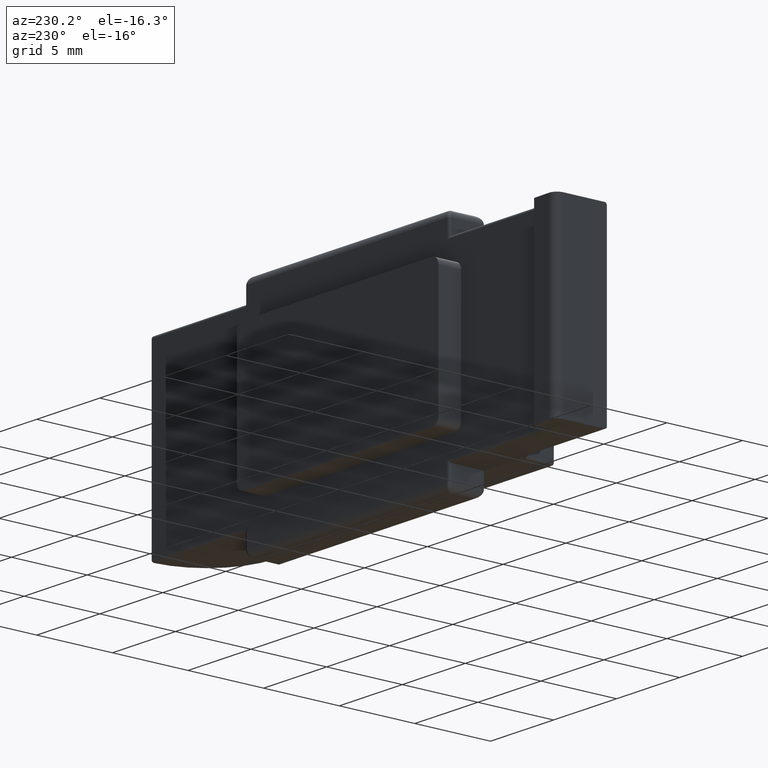
[diagram: clean part render]
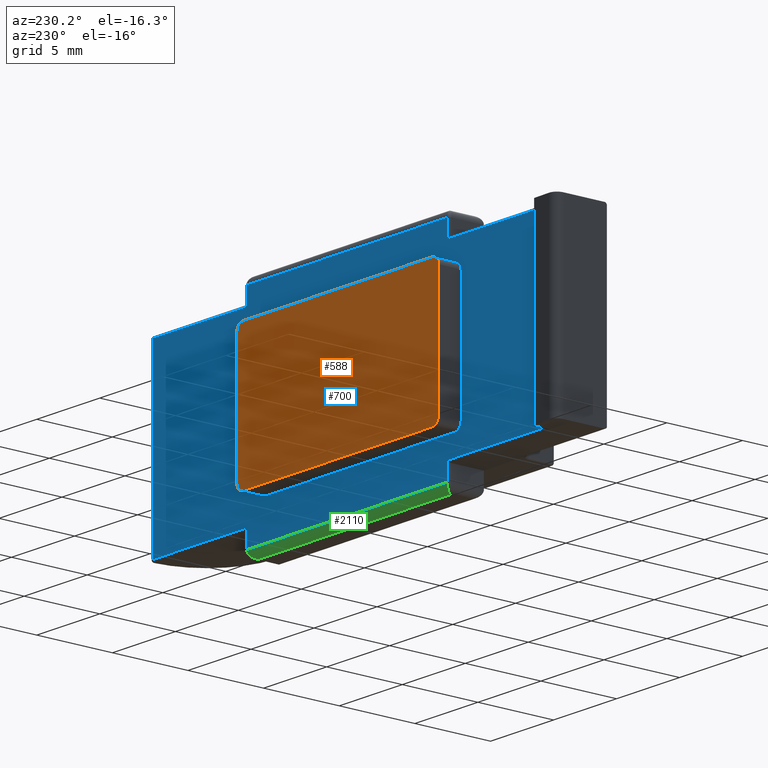
[diagram: same view with three faces highlighted in distinct colors, each labeled with its STEP entity id]
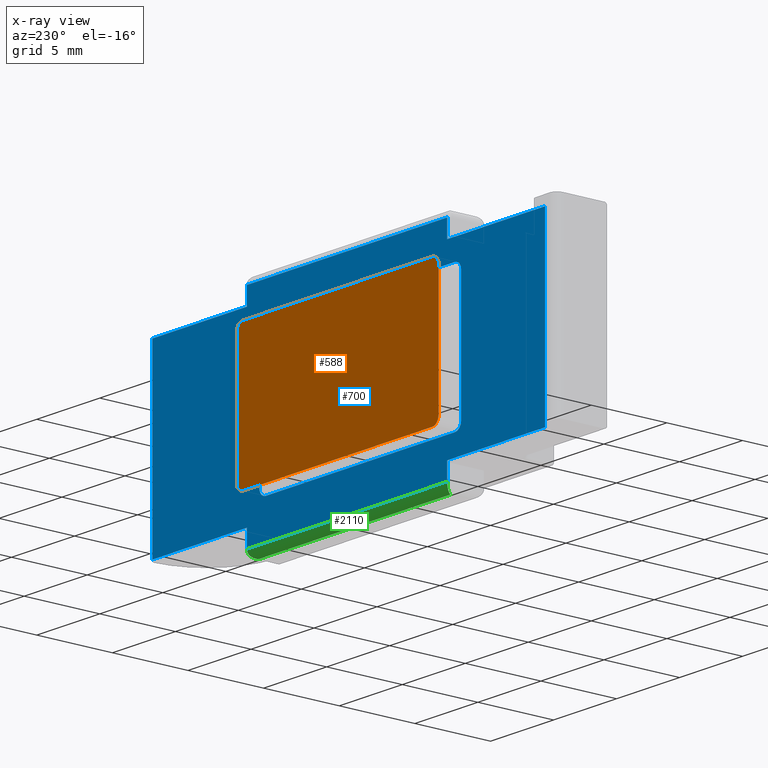
[diagram: x-ray of the same camera — body ghosted, the three highlighted faces saturated]
A machine part, auxiliary view with three faces highlighted in distinct colors.
The next image is the same camera in x-ray (body ghosted, the three faces saturated) — at least one of them is partly hidden behind the body in this view.
Their STEP definitions:

[orange] entity #588 — the highlighted planar face has unit normal (0, 1, 0).
#61 = ORIENTED_EDGE ( 'NONE', *, *, #1057, .T. ) ;
#99 = CARTESIAN_POINT ( 'NONE',  ( 18.04741302385688684, 0.8999999999999980238, 0.000000000000000000 ) ) ;
#156 = LINE ( 'NONE', #99, #1447 ) ;
#164 = CARTESIAN_POINT ( 'NONE',  ( 17.54741302385686197, 0.8999999999999980238, 10.00000000000000533 ) ) ;
#168 = ORIENTED_EDGE ( 'NONE', *, *, #463, .T. ) ;
#169 = EDGE_CURVE ( 'NONE', #1903, #2158, #296, .T. ) ;
#189 = DIRECTION ( 'NONE',  ( 0.000000000000000000, -6.162975822039132834E-33, -1.000000000000000000 ) ) ;
#256 = DIRECTION ( 'NONE',  ( 4.068560582467007589E-18, 1.000000000000000000, 0.000000000000000000 ) ) ;
#275 = VERTEX_POINT ( 'NONE', #1791 ) ;
#296 = CIRCLE ( 'NONE', #374, 0.5000000000000017764 ) ;
#374 = AXIS2_PLACEMENT_3D ( 'NONE', #573, #256, #1272 ) ;
#380 = CIRCLE ( 'NONE', #2115, 0.5000000000000004441 ) ;
#405 = VERTEX_POINT ( 'NONE', #688 ) ;
#437 = ORIENTED_EDGE ( 'NONE', *, *, #1945, .T. ) ;
#450 = VECTOR ( 'NONE', #1985, 1000.000000000000000 ) ;
#460 = ORIENTED_EDGE ( 'NONE', *, *, #835, .T. ) ;
#463 = EDGE_CURVE ( 'NONE', #1114, #2041, #380, .T. ) ;
#558 = AXIS2_PLACEMENT_3D ( 'NONE', #641, #1106, #1307 ) ;
#573 = CARTESIAN_POINT ( 'NONE',  ( 2.547413023856831771, 0.8999999999999980238, 2.000000000000001776 ) ) ;
#588 = ADVANCED_FACE ( 'NONE', ( #1833 ), #2139, .T. ) ;
#626 = CARTESIAN_POINT ( 'NONE',  ( 2.547413023856831771, 0.8999999999999980238, 1.500000000000001332 ) ) ;
#629 = LINE ( 'NONE', #1966, #734 ) ;
#641 = CARTESIAN_POINT ( 'NONE',  ( 2.547413023856807346, 0.8999999999999980238, 10.00000000000000888 ) ) ;
#655 = LINE ( 'NONE', #1035, #1450 ) ;
#688 = CARTESIAN_POINT ( 'NONE',  ( 18.04741302385686197, 0.8999999999999980238, 10.00000000000000533 ) ) ;
#696 = CARTESIAN_POINT ( 'NONE',  ( 2.047413023856806902, 0.8999999999999980238, 10.00000000000000888 ) ) ;
#728 = CARTESIAN_POINT ( 'NONE',  ( 17.54741302385688684, 0.8999999999999980238, 2.000000000000001776 ) ) ;
#734 = VECTOR ( 'NONE', #1446, 1000.000000000000000 ) ;
#835 = EDGE_CURVE ( 'NONE', #275, #1571, #629, .T. ) ;
#951 = ORIENTED_EDGE ( 'NONE', *, *, #1848, .T. ) ;
#1004 = CARTESIAN_POINT ( 'NONE',  ( 2.047413023856830883, 0.8999999999999980238, 2.000000000000001776 ) ) ;
#1035 = CARTESIAN_POINT ( 'NONE',  ( 3.469446951953614189E-15, 0.8999999999999980238, 1.500000000000008216 ) ) ;
#1057 = EDGE_CURVE ( 'NONE', #2041, #1903, #655, .T. ) ;
#1070 = DIRECTION ( 'NONE',  ( -1.000000000000000000, 0.000000000000000000, 0.000000000000000000 ) ) ;
#1073 = ORIENTED_EDGE ( 'NONE', *, *, #1395, .T. ) ;
#1081 = AXIS2_PLACEMENT_3D ( 'NONE', #1466, #1938, #1594 ) ;
#1088 = ORIENTED_EDGE ( 'NONE', *, *, #169, .T. ) ;
#1106 = DIRECTION ( 'NONE',  ( 4.068560582467007589E-18, 1.000000000000000000, 0.000000000000000000 ) ) ;
#1114 = VERTEX_POINT ( 'NONE', #1407 ) ;
#1119 = CARTESIAN_POINT ( 'NONE',  ( 17.54741302385688684, 0.8999999999999980238, 1.500000000000001332 ) ) ;
#1272 = DIRECTION ( 'NONE',  ( -1.000000000000000000, 0.000000000000000000, 0.000000000000000000 ) ) ;
#1303 = CARTESIAN_POINT ( 'NONE',  ( 2.047413023856830883, 0.8999999999999980238, 0.000000000000000000 ) ) ;
#1307 = DIRECTION ( 'NONE',  ( -1.000000000000000000, 0.000000000000000000, 0.000000000000000000 ) ) ;
#1380 = CARTESIAN_POINT ( 'NONE',  ( 17.54741302385686197, 0.8999999999999980238, 10.50000000000000533 ) ) ;
#1395 = EDGE_CURVE ( 'NONE', #2158, #1608, #1545, .T. ) ;
#1407 = CARTESIAN_POINT ( 'NONE',  ( 18.04741302385688684, 0.8999999999999980238, 2.000000000000001776 ) ) ;
#1433 = EDGE_LOOP ( 'NONE', ( #460, #1537, #437, #168, #61, #1088, #1073, #951 ) ) ;
#1438 = EDGE_CURVE ( 'NONE', #1571, #405, #2203, .T. ) ;
#1446 = DIRECTION ( 'NONE',  ( 1.000000000000000000, -4.068560582466971381E-18, 0.000000000000000000 ) ) ;
#1447 = VECTOR ( 'NONE', #189, 1000.000000000000000 ) ;
#1450 = VECTOR ( 'NONE', #1696, 1000.000000000000000 ) ;
#1466 = CARTESIAN_POINT ( 'NONE',  ( 3.469446951953614189E-15, 0.8999999999999980238, 0.000000000000000000 ) ) ;
#1512 = DIRECTION ( 'NONE',  ( -1.000000000000000000, 0.000000000000000000, 0.000000000000000000 ) ) ;
#1537 = ORIENTED_EDGE ( 'NONE', *, *, #1438, .T. ) ;
#1545 = LINE ( 'NONE', #1303, #450 ) ;
#1571 = VERTEX_POINT ( 'NONE', #1380 ) ;
#1594 = DIRECTION ( 'NONE',  ( -1.000000000000000000, 4.068560582466971381E-18, 0.000000000000000000 ) ) ;
#1608 = VERTEX_POINT ( 'NONE', #696 ) ;
#1696 = DIRECTION ( 'NONE',  ( -1.000000000000000000, 4.068560582466965989E-18, 2.168404344971007635E-16 ) ) ;
#1748 = DIRECTION ( 'NONE',  ( 4.068560582467007589E-18, 1.000000000000000000, 0.000000000000000000 ) ) ;
#1791 = CARTESIAN_POINT ( 'NONE',  ( 2.547413023856807346, 0.8999999999999980238, 10.50000000000000888 ) ) ;
#1829 = DIRECTION ( 'NONE',  ( 4.068560582467007589E-18, 1.000000000000000000, 0.000000000000000000 ) ) ;
#1833 = FACE_OUTER_BOUND ( 'NONE', #1433, .T. ) ;
#1848 = EDGE_CURVE ( 'NONE', #1608, #275, #1894, .T. ) ;
#1894 = CIRCLE ( 'NONE', #558, 0.5000000000000017764 ) ;
#1903 = VERTEX_POINT ( 'NONE', #626 ) ;
#1936 = AXIS2_PLACEMENT_3D ( 'NONE', #164, #1829, #1512 ) ;
#1938 = DIRECTION ( 'NONE',  ( 4.068560582466971381E-18, 1.000000000000000000, 0.000000000000000000 ) ) ;
#1945 = EDGE_CURVE ( 'NONE', #405, #1114, #156, .T. ) ;
#1966 = CARTESIAN_POINT ( 'NONE',  ( -2.081668171172168513E-14, 0.8999999999999980238, 10.50000000000000888 ) ) ;
#1985 = DIRECTION ( 'NONE',  ( 1.445602896647338670E-16, 6.162975822039132834E-33, 1.000000000000000000 ) ) ;
#2041 = VERTEX_POINT ( 'NONE', #1119 ) ;
#2115 = AXIS2_PLACEMENT_3D ( 'NONE', #728, #1748, #1070 ) ;
#2139 = PLANE ( 'NONE',  #1081 ) ;
#2158 = VERTEX_POINT ( 'NONE', #1004 ) ;
#2203 = CIRCLE ( 'NONE', #1936, 0.5000000000000004441 ) ;

[blue] entity #700 — the highlighted planar face has unit normal (-0, -1, 0).
#10 = VERTEX_POINT ( 'NONE', #1014 ) ;
#12 = VERTEX_POINT ( 'NONE', #528 ) ;
#18 = CARTESIAN_POINT ( 'NONE',  ( 0.000000000000000000, -0.6000000000000033085, 1.500000000000008216 ) ) ;
#23 = EDGE_CURVE ( 'NONE', #1548, #325, #1155, .T. ) ;
#33 = CARTESIAN_POINT ( 'NONE',  ( 2.047413023856827774, -0.6000000000000033085, 0.000000000000000000 ) ) ;
#47 = EDGE_CURVE ( 'NONE', #1821, #818, #660, .T. ) ;
#52 = CARTESIAN_POINT ( 'NONE',  ( 2.547413023856828218, -0.6000000000000033085, 1.500000000000001332 ) ) ;
#54 = EDGE_CURVE ( 'NONE', #325, #967, #2072, .T. ) ;
#116 = EDGE_CURVE ( 'NONE', #1358, #1573, #324, .T. ) ;
#139 = DIRECTION ( 'NONE',  ( -3.446287897283861734E-18, -1.000000000000000000, 0.000000000000000000 ) ) ;
#151 = DIRECTION ( 'NONE',  ( -3.446287897283861734E-18, -1.000000000000000000, 0.000000000000000000 ) ) ;
#170 = VERTEX_POINT ( 'NONE', #1588 ) ;
#171 = CARTESIAN_POINT ( 'NONE',  ( 3.150000000000001688, -0.6000000000000033085, -1.000000000000000888 ) ) ;
#182 = DIRECTION ( 'NONE',  ( 1.000000000000000000, 0.000000000000000000, 0.000000000000000000 ) ) ;
#191 = LINE ( 'NONE', #2127, #572 ) ;
#204 = CARTESIAN_POINT ( 'NONE',  ( -4.760000000000024656, -0.6000000000000033085, 11.85000000000002629 ) ) ;
#213 = CARTESIAN_POINT ( 'NONE',  ( 19.05000000000003268, -0.5999999999999963141, 12.00000000000001066 ) ) ;
#221 = VECTOR ( 'NONE', #1418, 1000.000000000000000 ) ;
#227 = VERTEX_POINT ( 'NONE', #804 ) ;
#240 = LINE ( 'NONE', #1858, #1984 ) ;
#279 = ORIENTED_EDGE ( 'NONE', *, *, #1282, .T. ) ;
#280 = ORIENTED_EDGE ( 'NONE', *, *, #1189, .F. ) ;
#316 = EDGE_LOOP ( 'NONE', ( #1533, #2083, #1064, #875, #280, #1597, #1961, #640 ) ) ;
#324 = CIRCLE ( 'NONE', #2073, 0.5000000000000017764 ) ;
#325 = VERTEX_POINT ( 'NONE', #2174 ) ;
#337 = CARTESIAN_POINT ( 'NONE',  ( 17.54741302385687973, -0.5999999999999963141, 2.000000000000001776 ) ) ;
#341 = EDGE_CURVE ( 'NONE', #1552, #1988, #428, .T. ) ;
#373 = EDGE_CURVE ( 'NONE', #1604, #227, #2154, .T. ) ;
#379 = VECTOR ( 'NONE', #1224, 1000.000000000000000 ) ;
#388 = EDGE_CURVE ( 'NONE', #926, #1323, #240, .T. ) ;
#414 = ORIENTED_EDGE ( 'NONE', *, *, #1975, .T. ) ;
#418 = DIRECTION ( 'NONE',  ( 1.000000000000000000, 0.000000000000000000, 0.000000000000000000 ) ) ;
#428 = LINE ( 'NONE', #1007, #2037 ) ;
#447 = LINE ( 'NONE', #2138, #886 ) ;
#448 = DIRECTION ( 'NONE',  ( -0.000000000000000000, 6.162975822039132834E-33, 1.000000000000000000 ) ) ;
#473 = DIRECTION ( 'NONE',  ( 1.000000000000000000, 0.000000000000000000, 0.000000000000000000 ) ) ;
#477 = VECTOR ( 'NONE', #2029, 1000.000000000000000 ) ;
#504 = AXIS2_PLACEMENT_3D ( 'NONE', #337, #151, #182 ) ;
#509 = VECTOR ( 'NONE', #2148, 1000.000000000000000 ) ;
#516 = CARTESIAN_POINT ( 'NONE',  ( 19.05000000000005755, -0.5999999999999963141, -1.000000000000000888 ) ) ;
#523 = VERTEX_POINT ( 'NONE', #52 ) ;
#528 = CARTESIAN_POINT ( 'NONE',  ( 26.54741302385691526, -0.5999999999999963141, 11.85000000000000675 ) ) ;
#541 = VECTOR ( 'NONE', #1283, 1000.000000000000000 ) ;
#544 = LINE ( 'NONE', #2186, #1979 ) ;
#560 = LINE ( 'NONE', #18, #1886 ) ;
#572 = VECTOR ( 'NONE', #1100, 1000.000000000000000 ) ;
#594 = LINE ( 'NONE', #1628, #509 ) ;
#640 = ORIENTED_EDGE ( 'NONE', *, *, #116, .T. ) ;
#660 = LINE ( 'NONE', #213, #477 ) ;
#664 = ORIENTED_EDGE ( 'NONE', *, *, #1562, .T. ) ;
#666 = DIRECTION ( 'NONE',  ( -0.000000000000000000, -6.162975822039132834E-33, -1.000000000000000000 ) ) ;
#686 = EDGE_CURVE ( 'NONE', #2074, #1872, #1567, .T. ) ;
#689 = DIRECTION ( 'NONE',  ( -0.000000000000000000, -6.162975822039132834E-33, -1.000000000000000000 ) ) ;
#700 = ADVANCED_FACE ( 'NONE', ( #2093, #1124 ), #2155, .F. ) ;
#705 = CARTESIAN_POINT ( 'NONE',  ( 3.150000000000003464, -0.6000000000000033085, 11.85000000000002629 ) ) ;
#758 = AXIS2_PLACEMENT_3D ( 'NONE', #2173, #1143, #1280 ) ;
#760 = LINE ( 'NONE', #516, #911 ) ;
#792 = CARTESIAN_POINT ( 'NONE',  ( 19.05000000000003268, -0.5999999999999963141, 13.00000000000001066 ) ) ;
#796 = EDGE_LOOP ( 'NONE', ( #279, #973, #414, #1965, #664, #1300, #1025, #1410, #1269, #1465, #892, #1056 ) ) ;
#804 = CARTESIAN_POINT ( 'NONE',  ( 18.04741302385688684, -0.5999999999999963141, 2.000000000000001776 ) ) ;
#810 = VECTOR ( 'NONE', #1374, 1000.000000000000000 ) ;
#818 = VERTEX_POINT ( 'NONE', #1919 ) ;
#857 = DIRECTION ( 'NONE',  ( 0.000000000000000000, 6.162975822039132834E-33, 1.000000000000000000 ) ) ;
#875 = ORIENTED_EDGE ( 'NONE', *, *, #373, .T. ) ;
#886 = VECTOR ( 'NONE', #2169, 1000.000000000000000 ) ;
#892 = ORIENTED_EDGE ( 'NONE', *, *, #54, .T. ) ;
#909 = LINE ( 'NONE', #204, #943 ) ;
#911 = VECTOR ( 'NONE', #689, 1000.000000000000000 ) ;
#921 = DIRECTION ( 'NONE',  ( -3.446287897283861734E-18, -1.000000000000000000, 0.000000000000000000 ) ) ;
#926 = VERTEX_POINT ( 'NONE', #1997 ) ;
#936 = CARTESIAN_POINT ( 'NONE',  ( 19.05000000000005755, -0.5999999999999963141, 0.1499999999999973577 ) ) ;
#943 = VECTOR ( 'NONE', #1202, 1000.000000000000000 ) ;
#963 = CARTESIAN_POINT ( 'NONE',  ( -4.610000000000023412, -0.6000000000000033085, 12.00000000000003197 ) ) ;
#967 = VERTEX_POINT ( 'NONE', #2191 ) ;
#969 = CARTESIAN_POINT ( 'NONE',  ( 18.04741302385686197, -0.5999999999999963141, 10.00000000000000533 ) ) ;
#973 = ORIENTED_EDGE ( 'NONE', *, *, #341, .T. ) ;
#1007 = CARTESIAN_POINT ( 'NONE',  ( 3.150000000000003464, -0.6000000000000033085, 12.00000000000003197 ) ) ;
#1014 = CARTESIAN_POINT ( 'NONE',  ( 2.047413023856827774, -0.6000000000000033085, 2.000000000000001776 ) ) ;
#1023 = LINE ( 'NONE', #1705, #379 ) ;
#1025 = ORIENTED_EDGE ( 'NONE', *, *, #388, .T. ) ;
#1056 = ORIENTED_EDGE ( 'NONE', *, *, #2033, .T. ) ;
#1064 = ORIENTED_EDGE ( 'NONE', *, *, #2156, .F. ) ;
#1069 = EDGE_CURVE ( 'NONE', #10, #1573, #1481, .T. ) ;
#1093 = EDGE_CURVE ( 'NONE', #1323, #170, #760, .T. ) ;
#1100 = DIRECTION ( 'NONE',  ( 1.000000000000000000, -3.446287897283827838E-18, -0.000000000000000000 ) ) ;
#1124 = FACE_BOUND ( 'NONE', #316, .T. ) ;
#1126 = CARTESIAN_POINT ( 'NONE',  ( 17.54741302385686197, -0.5999999999999963141, 10.50000000000000533 ) ) ;
#1129 = CARTESIAN_POINT ( 'NONE',  ( 17.54741302385686197, -0.5999999999999963141, 10.00000000000000533 ) ) ;
#1143 = DIRECTION ( 'NONE',  ( -3.446287897283861734E-18, -1.000000000000000000, 0.000000000000000000 ) ) ;
#1155 = LINE ( 'NONE', #1704, #1379 ) ;
#1163 = CARTESIAN_POINT ( 'NONE',  ( -4.610000000000023412, -0.6000000000000033085, 11.85000000000002629 ) ) ;
#1167 = CARTESIAN_POINT ( 'NONE',  ( -4.760000000000024656, -0.6000000000000033085, 12.00000000000003197 ) ) ;
#1183 = CARTESIAN_POINT ( 'NONE',  ( 2.047413023856803349, -0.6000000000000033085, 10.00000000000000888 ) ) ;
#1189 = EDGE_CURVE ( 'NONE', #2074, #227, #1023, .T. ) ;
#1193 = AXIS2_PLACEMENT_3D ( 'NONE', #1167, #1331, #1841 ) ;
#1202 = DIRECTION ( 'NONE',  ( 1.000000000000000000, -3.446287897283827838E-18, -0.000000000000000000 ) ) ;
#1224 = DIRECTION ( 'NONE',  ( 0.000000000000000000, -6.162975822039132834E-33, -1.000000000000000000 ) ) ;
#1261 = CARTESIAN_POINT ( 'NONE',  ( -4.760000000000000675, -0.6000000000000033085, 0.1500000000000042966 ) ) ;
#1269 = ORIENTED_EDGE ( 'NONE', *, *, #1809, .T. ) ;
#1280 = DIRECTION ( 'NONE',  ( 1.000000000000000000, 0.000000000000000000, 0.000000000000000000 ) ) ;
#1282 = EDGE_CURVE ( 'NONE', #1458, #1552, #191, .T. ) ;
#1283 = DIRECTION ( 'NONE',  ( 1.000000000000000000, -4.068560582466971381E-18, 0.000000000000000000 ) ) ;
#1294 = CARTESIAN_POINT ( 'NONE',  ( 2.547413023856803793, -0.6000000000000033085, 10.50000000000000888 ) ) ;
#1300 = ORIENTED_EDGE ( 'NONE', *, *, #1470, .T. ) ;
#1323 = VERTEX_POINT ( 'NONE', #936 ) ;
#1331 = DIRECTION ( 'NONE',  ( -3.446287897283827838E-18, -1.000000000000000000, 0.000000000000000000 ) ) ;
#1333 = DIRECTION ( 'NONE',  ( -1.000000000000000000, 4.068560582466965989E-18, 2.168404344971007635E-16 ) ) ;
#1358 = VERTEX_POINT ( 'NONE', #1294 ) ;
#1374 = DIRECTION ( 'NONE',  ( 1.445602896647338670E-16, 6.162975822039132834E-33, 1.000000000000000000 ) ) ;
#1379 = VECTOR ( 'NONE', #857, 1000.000000000000000 ) ;
#1394 = DIRECTION ( 'NONE',  ( -1.000000000000000000, 3.446287897283827838E-18, 0.000000000000000000 ) ) ;
#1397 = LINE ( 'NONE', #1793, #541 ) ;
#1398 = EDGE_CURVE ( 'NONE', #10, #523, #1955, .T. ) ;
#1410 = ORIENTED_EDGE ( 'NONE', *, *, #1093, .T. ) ;
#1418 = DIRECTION ( 'NONE',  ( -1.000000000000000000, 3.446287897283827838E-18, 0.000000000000000000 ) ) ;
#1458 = VERTEX_POINT ( 'NONE', #1163 ) ;
#1465 = ORIENTED_EDGE ( 'NONE', *, *, #23, .T. ) ;
#1470 = EDGE_CURVE ( 'NONE', #12, #926, #544, .T. ) ;
#1481 = LINE ( 'NONE', #33, #810 ) ;
#1533 = ORIENTED_EDGE ( 'NONE', *, *, #1069, .F. ) ;
#1548 = VERTEX_POINT ( 'NONE', #171 ) ;
#1552 = VERTEX_POINT ( 'NONE', #705 ) ;
#1562 = EDGE_CURVE ( 'NONE', #818, #12, #909, .T. ) ;
#1567 = CIRCLE ( 'NONE', #2024, 0.5000000000000004441 ) ;
#1573 = VERTEX_POINT ( 'NONE', #1183 ) ;
#1588 = CARTESIAN_POINT ( 'NONE',  ( 19.05000000000005755, -0.5999999999999963141, -1.000000000000000888 ) ) ;
#1597 = ORIENTED_EDGE ( 'NONE', *, *, #686, .T. ) ;
#1604 = VERTEX_POINT ( 'NONE', #1694 ) ;
#1628 = CARTESIAN_POINT ( 'NONE',  ( 19.20000000000003126, -0.5999999999999963141, 13.00000000000001066 ) ) ;
#1645 = VECTOR ( 'NONE', #448, 1000.000000000000000 ) ;
#1681 = DIRECTION ( 'NONE',  ( -0.000000000000000000, 6.162975822039132834E-33, 1.000000000000000000 ) ) ;
#1694 = CARTESIAN_POINT ( 'NONE',  ( 17.54741302385688684, -0.5999999999999963141, 1.500000000000001332 ) ) ;
#1704 = CARTESIAN_POINT ( 'NONE',  ( 3.150000000000003464, -0.6000000000000033085, 12.00000000000003197 ) ) ;
#1705 = CARTESIAN_POINT ( 'NONE',  ( 18.04741302385688684, -0.5999999999999963141, 0.000000000000000000 ) ) ;
#1793 = CARTESIAN_POINT ( 'NONE',  ( -2.428612866367529932E-14, -0.6000000000000033085, 10.50000000000000888 ) ) ;
#1796 = EDGE_CURVE ( 'NONE', #1358, #1872, #1397, .T. ) ;
#1809 = EDGE_CURVE ( 'NONE', #170, #1548, #447, .T. ) ;
#1821 = VERTEX_POINT ( 'NONE', #792 ) ;
#1841 = DIRECTION ( 'NONE',  ( 1.000000000000000000, -3.446287897283827838E-18, 0.000000000000000000 ) ) ;
#1858 = CARTESIAN_POINT ( 'NONE',  ( 19.20000000000005258, -0.5999999999999963141, 0.1499999999999973577 ) ) ;
#1872 = VERTEX_POINT ( 'NONE', #1126 ) ;
#1886 = VECTOR ( 'NONE', #1333, 1000.000000000000000 ) ;
#1890 = LINE ( 'NONE', #963, #1645 ) ;
#1919 = CARTESIAN_POINT ( 'NONE',  ( 19.05000000000003268, -0.5999999999999963141, 11.85000000000000675 ) ) ;
#1941 = CARTESIAN_POINT ( 'NONE',  ( 2.547413023856803793, -0.6000000000000033085, 10.00000000000000888 ) ) ;
#1955 = CIRCLE ( 'NONE', #758, 0.5000000000000017764 ) ;
#1961 = ORIENTED_EDGE ( 'NONE', *, *, #1796, .F. ) ;
#1965 = ORIENTED_EDGE ( 'NONE', *, *, #47, .T. ) ;
#1975 = EDGE_CURVE ( 'NONE', #1988, #1821, #594, .T. ) ;
#1979 = VECTOR ( 'NONE', #666, 1000.000000000000000 ) ;
#1983 = CARTESIAN_POINT ( 'NONE',  ( 3.150000000000003464, -0.6000000000000033085, 13.00000000000003197 ) ) ;
#1984 = VECTOR ( 'NONE', #1394, 1000.000000000000000 ) ;
#1988 = VERTEX_POINT ( 'NONE', #1983 ) ;
#1997 = CARTESIAN_POINT ( 'NONE',  ( 26.54741302385691881, -0.5999999999999963141, 0.1499999999999973577 ) ) ;
#2024 = AXIS2_PLACEMENT_3D ( 'NONE', #1129, #139, #473 ) ;
#2029 = DIRECTION ( 'NONE',  ( 0.000000000000000000, -6.162975822039132834E-33, -1.000000000000000000 ) ) ;
#2033 = EDGE_CURVE ( 'NONE', #967, #1458, #1890, .T. ) ;
#2037 = VECTOR ( 'NONE', #1681, 1000.000000000000000 ) ;
#2072 = LINE ( 'NONE', #1261, #221 ) ;
#2073 = AXIS2_PLACEMENT_3D ( 'NONE', #1941, #921, #418 ) ;
#2074 = VERTEX_POINT ( 'NONE', #969 ) ;
#2083 = ORIENTED_EDGE ( 'NONE', *, *, #1398, .T. ) ;
#2093 = FACE_OUTER_BOUND ( 'NONE', #796, .T. ) ;
#2127 = CARTESIAN_POINT ( 'NONE',  ( -4.760000000000024656, -0.6000000000000033085, 11.85000000000002629 ) ) ;
#2138 = CARTESIAN_POINT ( 'NONE',  ( 3.000000000000000888, -0.6000000000000033085, -1.000000000000000888 ) ) ;
#2148 = DIRECTION ( 'NONE',  ( 1.000000000000000000, -3.446287897283827838E-18, -0.000000000000000000 ) ) ;
#2154 = CIRCLE ( 'NONE', #504, 0.5000000000000004441 ) ;
#2155 = PLANE ( 'NONE',  #1193 ) ;
#2156 = EDGE_CURVE ( 'NONE', #1604, #523, #560, .T. ) ;
#2169 = DIRECTION ( 'NONE',  ( -1.000000000000000000, 3.446287897283827838E-18, -0.000000000000000000 ) ) ;
#2173 = CARTESIAN_POINT ( 'NONE',  ( 2.547413023856828218, -0.6000000000000033085, 2.000000000000001776 ) ) ;
#2174 = CARTESIAN_POINT ( 'NONE',  ( 3.150000000000001688, -0.6000000000000033085, 0.1499999999999973577 ) ) ;
#2186 = CARTESIAN_POINT ( 'NONE',  ( 26.54741302385691881, -0.5999999999999963141, 0.000000000000000000 ) ) ;
#2191 = CARTESIAN_POINT ( 'NONE',  ( -4.609999999999999432, -0.6000000000000033085, 0.1500000000000042966 ) ) ;

[green] entity #2110 — the highlighted cylindrical surface (edge-blend (fillet) strip) has radius 0.5 mm, axis along (-1, 0, 0).
#2 = CARTESIAN_POINT ( 'NONE',  ( 3.500000000000001332, -1.099999999999996758, -1.500000000000001332 ) ) ;
#170 = VERTEX_POINT ( 'NONE', #1588 ) ;
#171 = CARTESIAN_POINT ( 'NONE',  ( 3.150000000000001688, -0.6000000000000033085, -1.000000000000000888 ) ) ;
#288 = CARTESIAN_POINT ( 'NONE',  ( 3.149999999999999023, -0.5999999999999967581, -1.292893218813454093 ) ) ;
#297 = CARTESIAN_POINT ( 'NONE',  ( 3.500000000000001332, -1.099999999999996758, -1.500000000000001332 ) ) ;
#375 = CARTESIAN_POINT ( 'NONE',  ( 18.90502525316947313, -0.8071067811865442199, -1.500000000000002442 ) ) ;
#447 = LINE ( 'NONE', #2138, #886 ) ;
#518 = ORIENTED_EDGE ( 'NONE', *, *, #2005, .F. ) ;
#539 = FACE_OUTER_BOUND ( 'NONE', #1601, .T. ) ;
#691 = DIRECTION ( 'NONE',  ( -1.000000000000000000, 3.446287897283827838E-18, 0.000000000000000000 ) ) ;
#886 = VECTOR ( 'NONE', #2169, 1000.000000000000000 ) ;
#948 =( BOUNDED_CURVE ( )  B_SPLINE_CURVE ( 3, ( #1041, #1172, #375, #1878 ),
 .UNSPECIFIED., .F., .T. ) 
 B_SPLINE_CURVE_WITH_KNOTS ( ( 4, 4 ),
 ( 3.141592653589793116, 4.712388980384689674 ),
 .UNSPECIFIED. ) 
 CURVE ( )  GEOMETRIC_REPRESENTATION_ITEM ( )  RATIONAL_B_SPLINE_CURVE ( ( 1.000000000000000000, 0.8047378541243649375, 0.8047378541243649375, 1.000000000000000000 ) ) 
 REPRESENTATION_ITEM ( '' )  );
#1011 = CYLINDRICAL_SURFACE ( 'NONE', #1045, 0.5000000000000000000 ) ;
#1041 = CARTESIAN_POINT ( 'NONE',  ( 19.05000000000005755, -0.5999999999999963141, -1.000000000000000888 ) ) ;
#1045 = AXIS2_PLACEMENT_3D ( 'NONE', #1532, #691, #1862 ) ;
#1078 = ORIENTED_EDGE ( 'NONE', *, *, #1332, .T. ) ;
#1172 = CARTESIAN_POINT ( 'NONE',  ( 19.05000000000005755, -0.5999999999999967581, -1.292893218813454093 ) ) ;
#1328 = VERTEX_POINT ( 'NONE', #1774 ) ;
#1332 = EDGE_CURVE ( 'NONE', #1525, #1548, #1727, .T. ) ;
#1525 = VERTEX_POINT ( 'NONE', #2 ) ;
#1532 = CARTESIAN_POINT ( 'NONE',  ( 0.000000000000000000, -1.100000000000003642, -1.000000000000000888 ) ) ;
#1548 = VERTEX_POINT ( 'NONE', #171 ) ;
#1588 = CARTESIAN_POINT ( 'NONE',  ( 19.05000000000005755, -0.5999999999999963141, -1.000000000000000888 ) ) ;
#1601 = EDGE_LOOP ( 'NONE', ( #518, #1078, #2053, #1939 ) ) ;
#1607 = EDGE_CURVE ( 'NONE', #170, #1328, #948, .T. ) ;
#1638 = CARTESIAN_POINT ( 'NONE',  ( 19.20000000000005613, -1.099999999999996758, -1.500000000000001332 ) ) ;
#1697 = LINE ( 'NONE', #1638, #1806 ) ;
#1727 =( BOUNDED_CURVE ( )  B_SPLINE_CURVE ( 3, ( #297, #1970, #288, #1801 ),
 .UNSPECIFIED., .F., .T. ) 
 B_SPLINE_CURVE_WITH_KNOTS ( ( 4, 4 ),
 ( 1.570796326794896558, 3.141592653589793116 ),
 .UNSPECIFIED. ) 
 CURVE ( )  GEOMETRIC_REPRESENTATION_ITEM ( )  RATIONAL_B_SPLINE_CURVE ( ( 1.000000000000000000, 0.8047378541243649375, 0.8047378541243649375, 1.000000000000000000 ) ) 
 REPRESENTATION_ITEM ( '' )  );
#1774 = CARTESIAN_POINT ( 'NONE',  ( 18.70000000000005613, -1.099999999999996758, -1.500000000000001332 ) ) ;
#1801 = CARTESIAN_POINT ( 'NONE',  ( 3.150000000000001688, -0.6000000000000033085, -1.000000000000000888 ) ) ;
#1806 = VECTOR ( 'NONE', #2140, 1000.000000000000000 ) ;
#1809 = EDGE_CURVE ( 'NONE', #170, #1548, #447, .T. ) ;
#1862 = DIRECTION ( 'NONE',  ( -3.446287897283862119E-18, -1.000000000000000000, 0.000000000000000000 ) ) ;
#1878 = CARTESIAN_POINT ( 'NONE',  ( 18.70000000000005613, -1.099999999999996758, -1.500000000000001332 ) ) ;
#1939 = ORIENTED_EDGE ( 'NONE', *, *, #1607, .T. ) ;
#1970 = CARTESIAN_POINT ( 'NONE',  ( 3.294974746830583001, -0.8071067811865442199, -1.500000000000002442 ) ) ;
#2005 = EDGE_CURVE ( 'NONE', #1525, #1328, #1697, .T. ) ;
#2053 = ORIENTED_EDGE ( 'NONE', *, *, #1809, .F. ) ;
#2110 = ADVANCED_FACE ( 'NONE', ( #539 ), #1011, .T. ) ;
#2138 = CARTESIAN_POINT ( 'NONE',  ( 3.000000000000000888, -0.6000000000000033085, -1.000000000000000888 ) ) ;
#2140 = DIRECTION ( 'NONE',  ( 1.000000000000000000, -3.446287897283827838E-18, 0.000000000000000000 ) ) ;
#2169 = DIRECTION ( 'NONE',  ( -1.000000000000000000, 3.446287897283827838E-18, -0.000000000000000000 ) ) ;